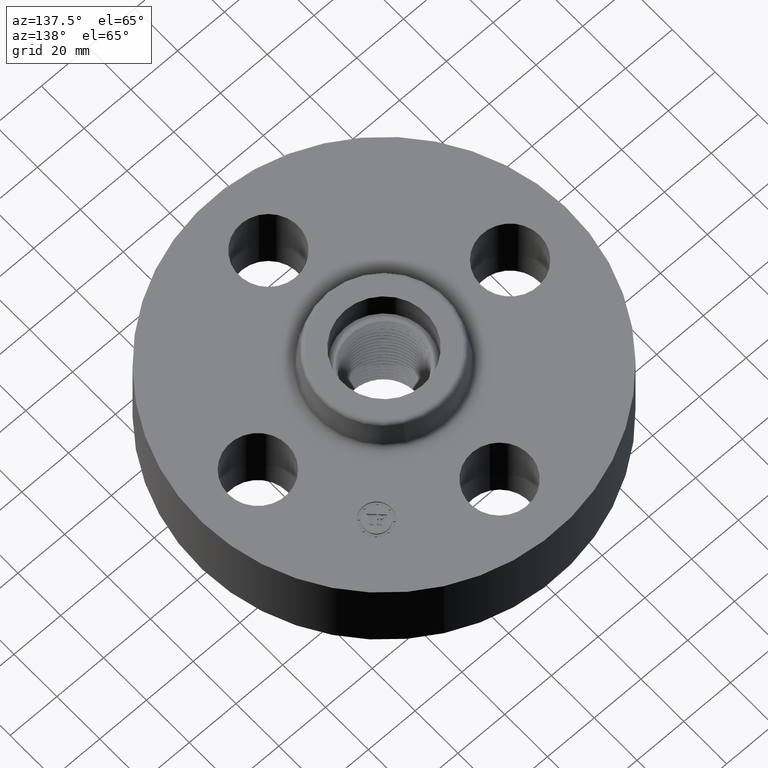
[diagram: clean part render]
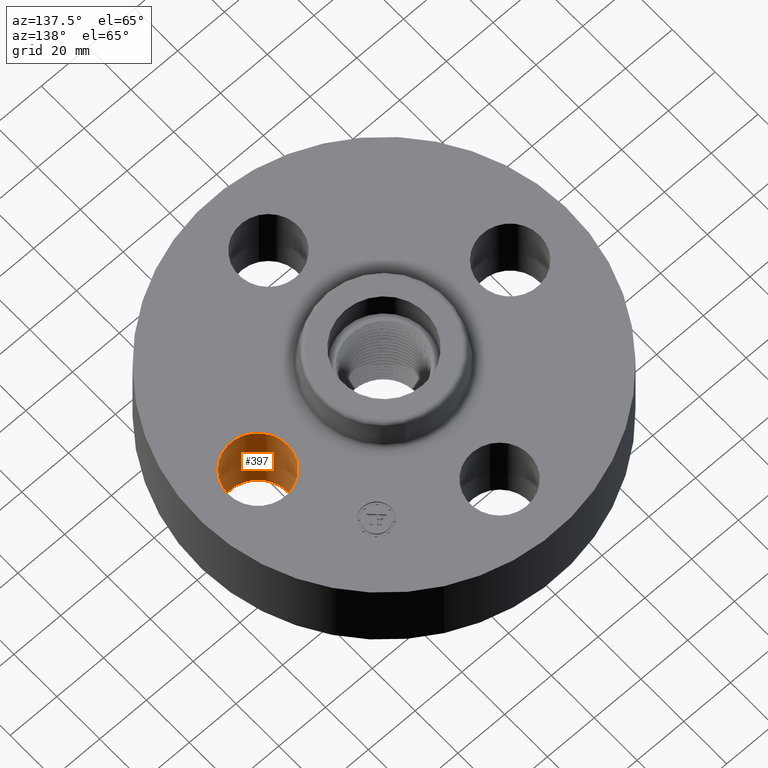
[diagram: same view with one face highlighted and labeled with its STEP entity id]
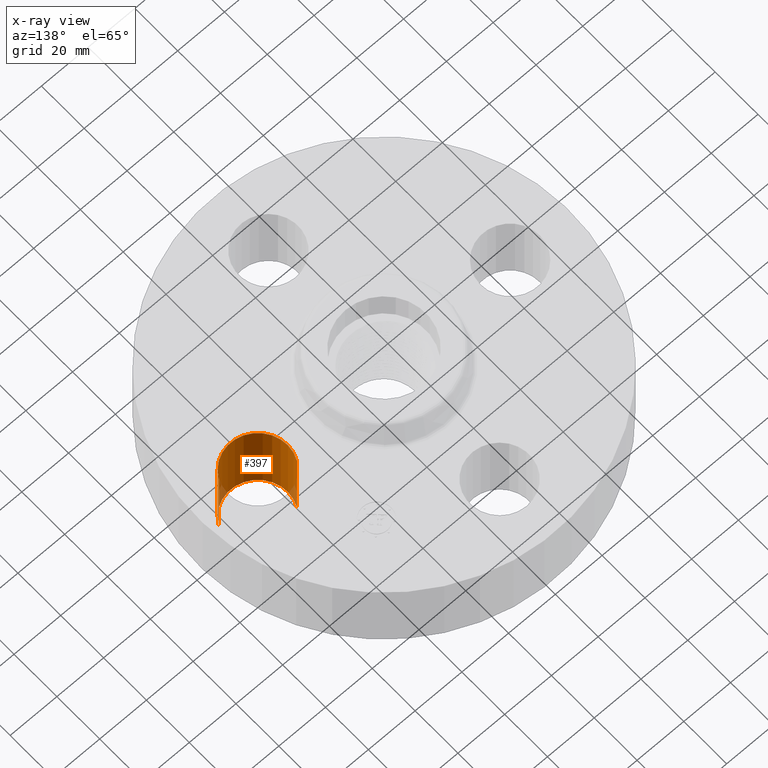
[diagram: x-ray of the same camera — body ghosted, the highlighted face saturated]
A machine part, auxiliary view. The second image highlights one B-rep face of the part: STEP entity #397.
The next image is the same camera in x-ray: the body ghosted, the highlighted face saturated — about 5% of this face is hidden behind the body in this view.
In plain terms, the highlighted cylindrical surface (partial cylindrical patch) has radius 12.7 mm, axis along (0, -0, -1).
Its self-contained STEP definition (entity closure, byte-faithful):
#344=AXIS2_PLACEMENT_3D('Cylinder Axis2P3D',#341,#342,#343) ;
#383=AXIS2_PLACEMENT_3D('Circle Axis2P3D',#381,#382,$) ;
#388=AXIS2_PLACEMENT_3D('Circle Axis2P3D',#386,#387,$) ;
#341=CARTESIAN_POINT('Axis2P3D Location',(2.12500000001,0.,1.37606299213)) ;
#346=CARTESIAN_POINT('Line Origine',(1.68620871906,0.239712769303,0.690000000003)) ;
#350=CARTESIAN_POINT('Vertex',(1.68620871906,0.239712769303,0.)) ;
#352=CARTESIAN_POINT('Vertex',(1.68620871906,0.239712769303,1.38000000001)) ;
#359=CARTESIAN_POINT('Vertex',(2.56379128096,-0.239712769303,0.)) ;
#362=CARTESIAN_POINT('Line Origine',(2.56379128096,-0.239712769303,0.690000000003)) ;
#366=CARTESIAN_POINT('Vertex',(2.56379128096,-0.239712769303,1.38000000001)) ;
#381=CARTESIAN_POINT('Axis2P3D Location',(2.12500000001,0.,0.)) ;
#386=CARTESIAN_POINT('Axis2P3D Location',(2.12500000001,0.,1.38000000001)) ;
#342=DIRECTION('Axis2P3D Direction',(0.,-0.,-0.0393700787402)) ;
#343=DIRECTION('Axis2P3D XDirection',(0.0345504945626,-0.0188750212049,0.)) ;
#347=DIRECTION('Vector Direction',(0.,0.,-0.0393700787402)) ;
#363=DIRECTION('Vector Direction',(0.,0.,-0.0393700787402)) ;
#382=DIRECTION('Axis2P3D Direction',(0.,-0.,-0.0393700787402)) ;
#387=DIRECTION('Axis2P3D Direction',(0.,-0.,-0.0393700787402)) ;
#348=VECTOR('Line Direction',#347,0.0393700787402) ;
#364=VECTOR('Line Direction',#363,0.0393700787402) ;
#392=ORIENTED_EDGE('',*,*,#368,.F.) ;
#393=ORIENTED_EDGE('',*,*,#385,.T.) ;
#394=ORIENTED_EDGE('',*,*,#354,.T.) ;
#395=ORIENTED_EDGE('',*,*,#390,.F.) ;
#397=ADVANCED_FACE('PartBody',(#396),#345,.F.) ;
#384=CIRCLE('generated circle',#383,0.500000000002) ;
#389=CIRCLE('generated circle',#388,0.500000000002) ;
#345=CYLINDRICAL_SURFACE('generated cylinder',#344,0.500000000002) ;
#354=EDGE_CURVE('',#351,#353,#349,.F.) ;
#368=EDGE_CURVE('',#360,#367,#365,.F.) ;
#385=EDGE_CURVE('',#360,#351,#384,.T.) ;
#390=EDGE_CURVE('',#367,#353,#389,.T.) ;
#391=EDGE_LOOP('',(#392,#393,#394,#395)) ;
#396=FACE_OUTER_BOUND('',#391,.T.) ;
#349=LINE('Line',#346,#348) ;
#365=LINE('Line',#362,#364) ;
#351=VERTEX_POINT('',#350) ;
#353=VERTEX_POINT('',#352) ;
#360=VERTEX_POINT('',#359) ;
#367=VERTEX_POINT('',#366) ;